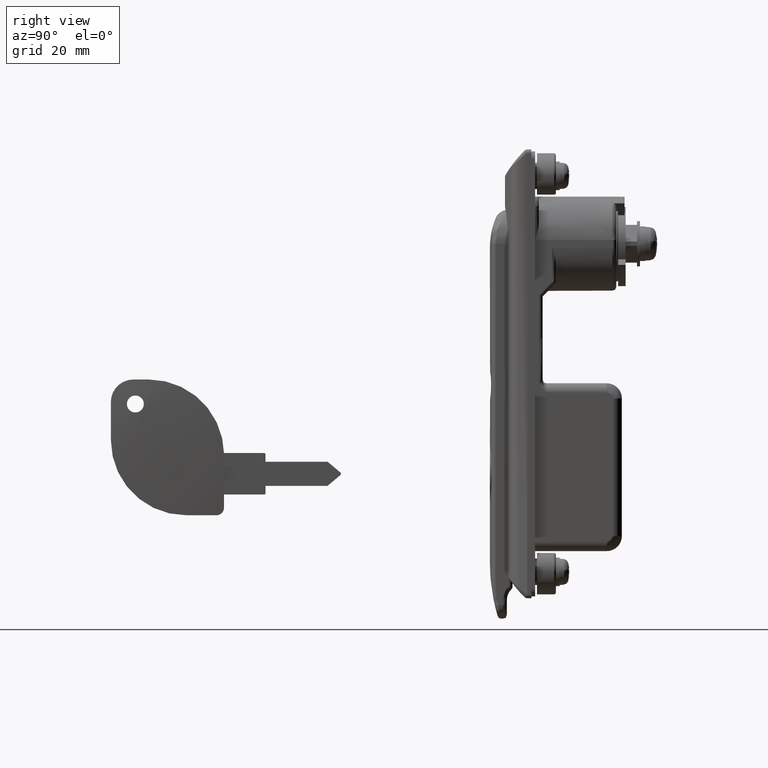
[diagram: clean part render]
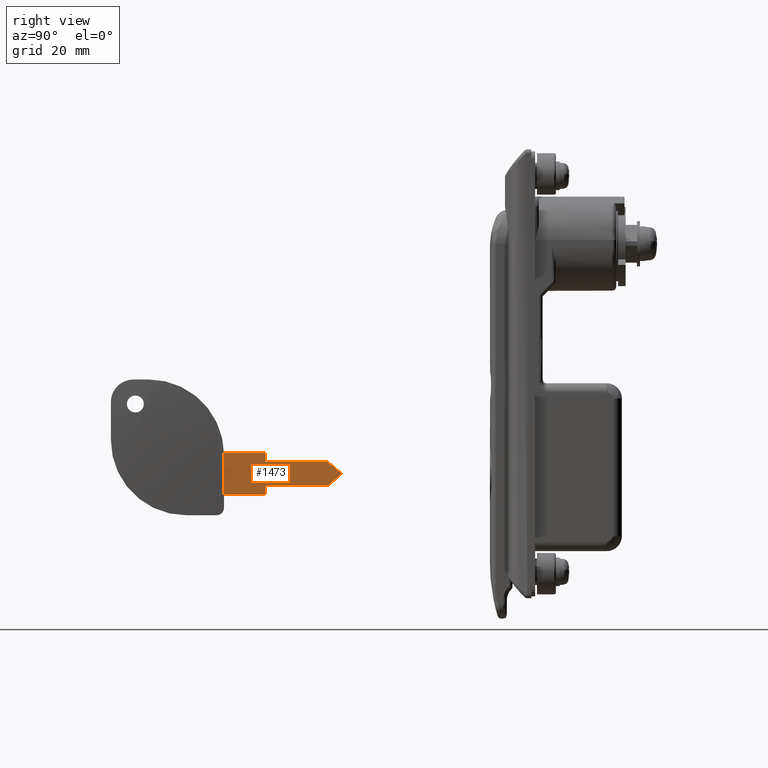
[diagram: same view with one face highlighted and labeled with its STEP entity id]
A machine part, right view. The second image highlights one B-rep face of the part: STEP entity #1473.
In plain terms, the highlighted face is a freeform B-spline surface patch.
Its self-contained STEP definition (entity closure, byte-faithful):
#503=CARTESIAN_POINT('',(1.400000005960438,-63.500000000000000,-64.200000000093297));
#504=VERTEX_POINT('',#503);
#510=CARTESIAN_POINT('',(1.400000005960438,-63.500000000000000,-66.200000000093297));
#511=VERTEX_POINT('',#510);
#512=CARTESIAN_POINT('',(1.400000005960438,-63.500000000000000,-64.200000000093297));
#513=CARTESIAN_POINT('',(1.400000005960438,-63.500000000000000,-66.200000000093297));
#514=QUASI_UNIFORM_CURVE('',1,(#512,#513),.UNSPECIFIED.,.F.,.U.);
#515=EDGE_CURVE('',#504,#511,#514,.T.);
#537=CARTESIAN_POINT('',(1.400000005960439,-47.035749500000001,-64.200000000093297));
#538=VERTEX_POINT('',#537);
#544=CARTESIAN_POINT('',(1.400000005960439,-47.035749500000001,-64.200000000093297));
#545=CARTESIAN_POINT('',(1.400000005960438,-63.500000000000000,-64.200000000093297));
#546=QUASI_UNIFORM_CURVE('',1,(#544,#545),.UNSPECIFIED.,.F.,.U.);
#547=EDGE_CURVE('',#538,#504,#546,.T.);
#565=CARTESIAN_POINT('',(1.400000005960438,-43.678606195156853,-61.383022221652780));
#566=VERTEX_POINT('',#565);
#572=CARTESIAN_POINT('',(1.400000005960438,-43.678606195156853,-61.383022221652780));
#573=CARTESIAN_POINT('',(1.400000005960439,-47.035749500000001,-64.200000000093297));
#574=QUASI_UNIFORM_CURVE('',1,(#572,#573),.UNSPECIFIED.,.F.,.U.);
#575=EDGE_CURVE('',#566,#538,#574,.T.);
#607=CARTESIAN_POINT('',(1.400000005960438,-43.678605999999952,-60.616977500093313));
#608=VERTEX_POINT('',#607);
#614=CARTESIAN_POINT('',(1.400000005960438,-43.678605999999952,-60.616977500093313));
#615=CARTESIAN_POINT('',(1.400000005960439,-43.629829889842028,-60.657841627544272));
#616=CARTESIAN_POINT('',(1.400000005960438,-43.542352756372132,-60.765708907058070));
#617=CARTESIAN_POINT('',(1.400000005960439,-43.484574056773752,-60.971847412717892));
#618=CARTESIAN_POINT('',(1.400000005960438,-43.522622669289127,-61.201486995188368));
#619=CARTESIAN_POINT('',(1.400000005960440,-43.615792625936358,-61.330540241021282));
#620=CARTESIAN_POINT('',(1.400000005960438,-43.678606195156853,-61.383022221652780));
#621=B_SPLINE_CURVE_WITH_KNOTS('',3,(#614,#615,#616,#617,#618,#619,#620),.UNSPECIFIED.,.F.,.U.,(4,1,1,1,4),(0.000000425358766,0.190919730479547,0.409127863985918,0.627303103357014,0.872772792031842),.UNSPECIFIED.);
#622=EDGE_CURVE('',#608,#566,#621,.T.);
#640=CARTESIAN_POINT('',(1.400000005960438,-47.035749500000001,-57.800000000093213));
#641=VERTEX_POINT('',#640);
#647=CARTESIAN_POINT('',(1.400000005960438,-47.035749500000001,-57.800000000093213));
#648=CARTESIAN_POINT('',(1.400000005960438,-43.678605999999952,-60.616977500093313));
#649=QUASI_UNIFORM_CURVE('',1,(#647,#648),.UNSPECIFIED.,.F.,.U.);
#650=EDGE_CURVE('',#641,#608,#649,.T.);
#668=CARTESIAN_POINT('',(1.400000005960437,-63.500000000000000,-57.800000000093213));
#669=VERTEX_POINT('',#668);
#675=CARTESIAN_POINT('',(1.400000005960437,-63.500000000000000,-57.800000000093213));
#676=CARTESIAN_POINT('',(1.400000005960438,-47.035749500000001,-57.800000000093213));
#677=QUASI_UNIFORM_CURVE('',1,(#675,#676),.UNSPECIFIED.,.F.,.U.);
#678=EDGE_CURVE('',#669,#641,#677,.T.);
#696=CARTESIAN_POINT('',(1.400000005960437,-63.500000000000000,-55.800000000093213));
#697=VERTEX_POINT('',#696);
#703=CARTESIAN_POINT('',(1.400000005960437,-63.500000000000000,-55.800000000093213));
#704=CARTESIAN_POINT('',(1.400000005960437,-63.500000000000000,-57.800000000093213));
#705=QUASI_UNIFORM_CURVE('',1,(#703,#704),.UNSPECIFIED.,.F.,.U.);
#706=EDGE_CURVE('',#697,#669,#705,.T.);
#741=CARTESIAN_POINT('',(1.400000005960437,-63.799999999999997,-55.500000000093202));
#742=VERTEX_POINT('',#741);
#748=CARTESIAN_POINT('',(1.400000005960437,-63.799999999999997,-55.500000000093223));
#749=CARTESIAN_POINT('',(1.400000005960437,-63.499999999999993,-55.500000000093223));
#750=CARTESIAN_POINT('',(1.400000005960437,-63.500000000000000,-55.800000000093213));
#758=(BOUNDED_CURVE()B_SPLINE_CURVE(2,(#748,#749,#750),.UNSPECIFIED.,.F.,.U.)CURVE()GEOMETRIC_REPRESENTATION_ITEM()QUASI_UNIFORM_CURVE()RATIONAL_B_SPLINE_CURVE((1.0,0.707106781186547,1.0))REPRESENTATION_ITEM(''));
#759=EDGE_CURVE('',#742,#697,#758,.T.);
#777=CARTESIAN_POINT('',(1.400000005959326,-74.506250976867818,-55.500000000093188));
#778=VERTEX_POINT('',#777);
#784=CARTESIAN_POINT('',(1.400000005959326,-74.506250976867818,-55.500000000093188));
#785=CARTESIAN_POINT('',(1.400000005960437,-63.799999999999997,-55.500000000093202));
#786=QUASI_UNIFORM_CURVE('',1,(#784,#785),.UNSPECIFIED.,.F.,.U.);
#787=EDGE_CURVE('',#778,#742,#786,.T.);
#1324=CARTESIAN_POINT('',(1.400000005960465,-74.500000000000000,-66.500000000103881));
#1325=VERTEX_POINT('',#1324);
#1331=CARTESIAN_POINT('',(1.400000005959326,-74.500000000000028,-56.000000000093280));
#1332=VERTEX_POINT('',#1331);
#1333=CARTESIAN_POINT('',(1.400000005960465,-74.500000000000000,-66.500000000103881));
#1334=CARTESIAN_POINT('',(1.400000005959326,-74.500000000000028,-56.000000000093280));
#1335=QUASI_UNIFORM_CURVE('',1,(#1333,#1334),.UNSPECIFIED.,.F.,.U.);
#1336=EDGE_CURVE('',#1325,#1332,#1335,.T.);
#1361=CARTESIAN_POINT('',(1.400000005959326,-74.506250976867818,-55.500000000093188));
#1362=CARTESIAN_POINT('',(1.400000005960436,-74.500000000000000,-55.749960925381437));
#1363=CARTESIAN_POINT('',(1.400000005960436,-74.500000000000000,-56.000000000093280));
#1371=(BOUNDED_CURVE()B_SPLINE_CURVE(2,(#1361,#1362,#1363),.UNSPECIFIED.,.F.,.U.)CURVE()GEOMETRIC_REPRESENTATION_ITEM()QUASI_UNIFORM_CURVE()RATIONAL_B_SPLINE_CURVE((1.0,0.999921859736202,1.0))REPRESENTATION_ITEM(''));
#1372=EDGE_CURVE('',#778,#1332,#1371,.T.);
#1435=CARTESIAN_POINT('',(1.400000005960467,-41.951237823801591,-67.049449978784281));
#1436=CARTESIAN_POINT('',(1.400000005960466,-41.951237823801591,-54.950549726369808));
#1437=CARTESIAN_POINT('',(1.400000005960465,-76.055013984718698,-67.049449978784281));
#1438=CARTESIAN_POINT('',(1.400000005960464,-76.055013984718698,-54.950549726369800));
#1439=B_SPLINE_SURFACE_WITH_KNOTS('',1,1,((#1435,#1437),(#1436,#1438)),.UNSPECIFIED.,.F.,.F.,.U.,(2,2),(2,2),(0.0,12.098900252414481),(0.0,34.103776160917107),.UNSPECIFIED.);
#1440=CARTESIAN_POINT('',(1.400000005960438,-63.799999999999997,-66.500000000093308));
#1441=VERTEX_POINT('',#1440);
#1442=CARTESIAN_POINT('',(1.400000005960438,-63.799999999999997,-66.500000000093308));
#1443=CARTESIAN_POINT('',(1.400000005960465,-74.500000000000000,-66.500000000103881));
#1444=QUASI_UNIFORM_CURVE('',1,(#1442,#1443),.UNSPECIFIED.,.F.,.U.);
#1445=EDGE_CURVE('',#1441,#1325,#1444,.T.);
#1446=ORIENTED_EDGE('',*,*,#1445,.F.);
#1447=CARTESIAN_POINT('',(1.400000005960438,-63.500000000000000,-66.200000000093297));
#1448=CARTESIAN_POINT('',(1.400000005960438,-63.499999999999993,-66.500000000093308));
#1449=CARTESIAN_POINT('',(1.400000005960438,-63.799999999999997,-66.500000000093308));
#1457=(BOUNDED_CURVE()B_SPLINE_CURVE(2,(#1447,#1448,#1449),.UNSPECIFIED.,.F.,.U.)CURVE()GEOMETRIC_REPRESENTATION_ITEM()QUASI_UNIFORM_CURVE()RATIONAL_B_SPLINE_CURVE((1.0,0.707106781186547,1.0))REPRESENTATION_ITEM(''));
#1458=EDGE_CURVE('',#511,#1441,#1457,.T.);
#1459=ORIENTED_EDGE('',*,*,#1458,.F.);
#1460=ORIENTED_EDGE('',*,*,#515,.F.);
#1461=ORIENTED_EDGE('',*,*,#547,.F.);
#1462=ORIENTED_EDGE('',*,*,#575,.F.);
#1463=ORIENTED_EDGE('',*,*,#622,.F.);
#1464=ORIENTED_EDGE('',*,*,#650,.F.);
#1465=ORIENTED_EDGE('',*,*,#678,.F.);
#1466=ORIENTED_EDGE('',*,*,#706,.F.);
#1467=ORIENTED_EDGE('',*,*,#759,.F.);
#1468=ORIENTED_EDGE('',*,*,#787,.F.);
#1469=ORIENTED_EDGE('',*,*,#1372,.T.);
#1470=ORIENTED_EDGE('',*,*,#1336,.F.);
#1471=EDGE_LOOP('',(#1446,#1459,#1460,#1461,#1462,#1463,#1464,#1465,#1466,#1467,#1468,#1469,#1470));
#1472=FACE_OUTER_BOUND('',#1471,.T.);
#1473=ADVANCED_FACE('',(#1472),#1439,.T.);